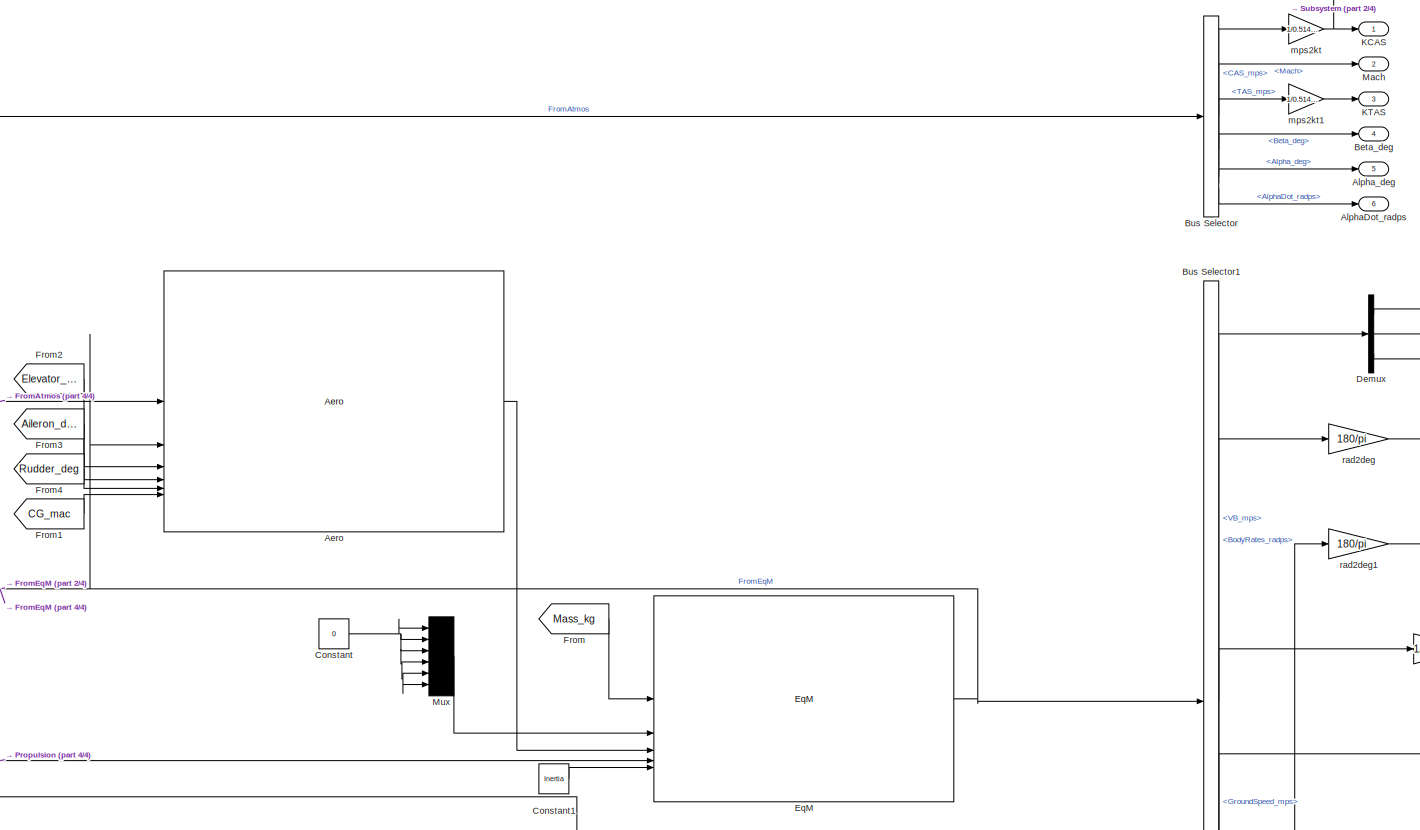
[diagram: root canvas - part 1/4, central region]
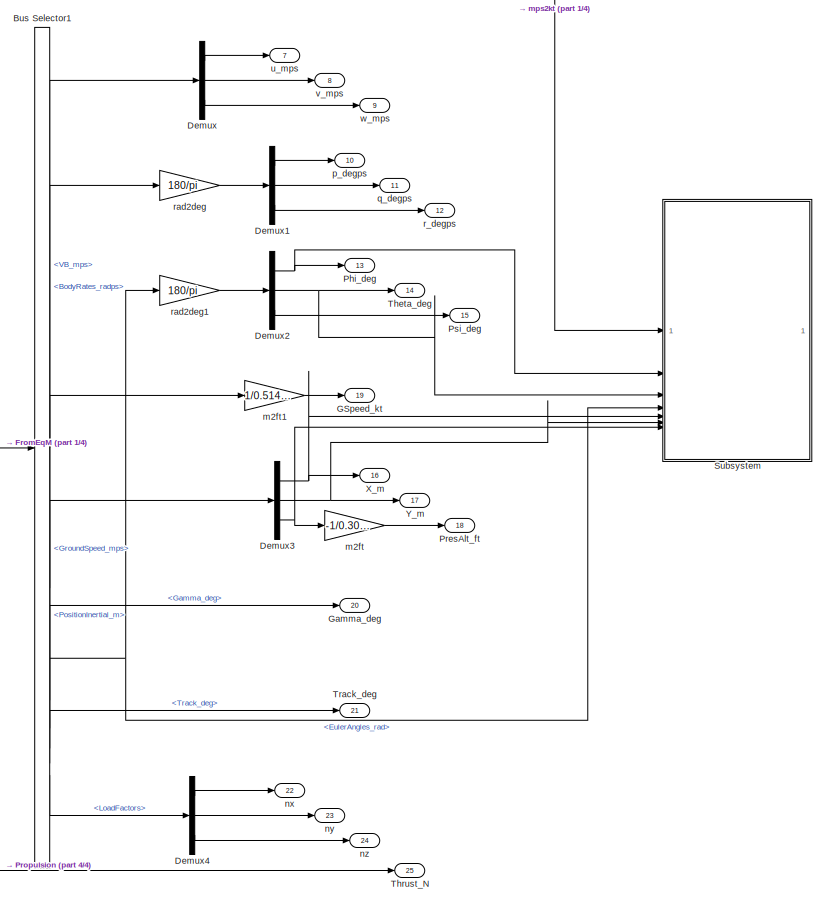
[diagram: root canvas - part 2/4, right side, full height]
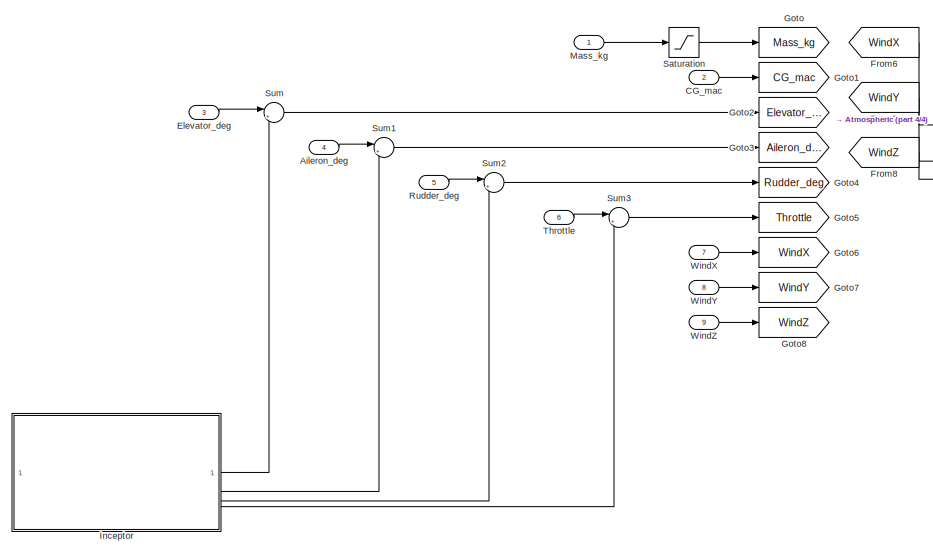
[diagram: root canvas - part 3/4, middle left region]
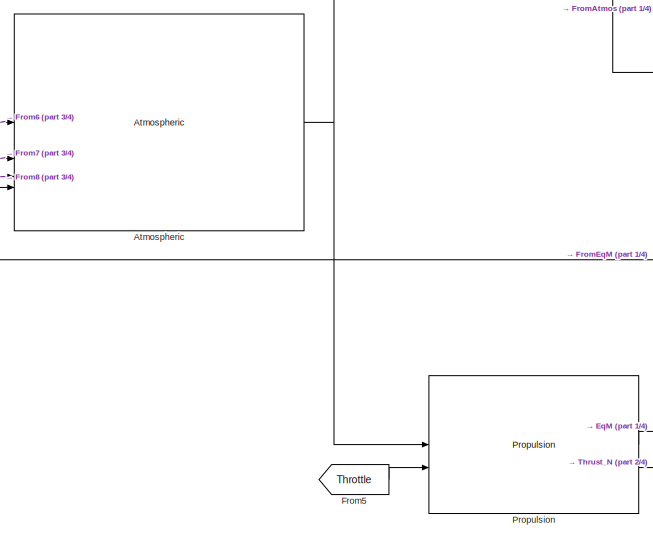
[diagram: root canvas - part 4/4, central region]
MODEL slx_308ef54bdd5a
KIND model
CONFIG AbsTol = auto
CONFIG EnableMultiTasking = on
CONFIG FixedStep = 0.01
CONFIG MaxStep = auto
CONFIG MinStep = auto
CONFIG RelTol = 1e-3
CONFIG SampleTimeConstraint = Unconstrained
CONFIG SolverName = ode4
CONFIG StartTime = 0.0
CONFIG StopTime = inf
BLOCK [Reference] Aero  REF=Aerodynamics/Aero
  SourceBlock = Aerodynamics/Aero
  SourceType = SubSystem
BLOCK [Inport] Aileron_deg
  Port = 4
BLOCK [Outport] AlphaDot_radps
  Port = 6
BLOCK [Outport] Alpha_deg 
  Port = 5
BLOCK [Reference] Atmospheric  REF=Atmospheric/Atmospheric
  SourceBlock = Atmospheric/Atmospheric
  SourceType = SubSystem
BLOCK [Outport] Beta_deg
  Port = 4
BLOCK [BusSelector] Bus Selector
  OutputSignals = CAS_mps,Mach,TAS_mps,Beta_deg,Alpha_deg,AlphaDot_radps
BLOCK [BusSelector] Bus Selector1
  OutputSignals = VB_mps,BodyRates_radps,EulerAngles_rad,GroundSpeed_mps,PositionInertial_m,Gamma_deg,Track_deg,LoadFactors
BLOCK [Inport] CG_mac
  Port = 2
BLOCK [Constant] Constant
  Value = 0
BLOCK [Constant] Constant1
  Value = Inertia
BLOCK [Demux] Demux
  Outputs = 3
BLOCK [Demux] Demux1
  Outputs = 3
BLOCK [Demux] Demux2
  Outputs = 3
BLOCK [Demux] Demux3
  Outputs = 3
BLOCK [Demux] Demux4
  Outputs = 3
BLOCK [Inport] Elevator_deg
  Port = 3
BLOCK [Reference] EqM  REF=EqM/EqM
  SourceBlock = EqM/EqM
  SourceType = SubSystem
BLOCK [From] From
  GotoTag = Mass_kg
BLOCK [From] From1
  GotoTag = CG_mac
BLOCK [From] From2
  GotoTag = Elevator_deg
BLOCK [From] From3
  GotoTag = Aileron_deg
BLOCK [From] From4
  GotoTag = Rudder_deg
BLOCK [From] From5
  GotoTag = Throttle
BLOCK [From] From6
  GotoTag = WindX
BLOCK [From] From7
  GotoTag = WindY
BLOCK [From] From8
  GotoTag = WindZ
BLOCK [Outport] GSpeed_kt
  Port = 19
BLOCK [Outport] Gamma_deg
  Port = 20
BLOCK [Goto] Goto
  GotoTag = Mass_kg
BLOCK [Goto] Goto1
  GotoTag = CG_mac
BLOCK [Goto] Goto2
  GotoTag = Elevator_deg
BLOCK [Goto] Goto3
  GotoTag = Aileron_deg
BLOCK [Goto] Goto4
  GotoTag = Rudder_deg
BLOCK [Goto] Goto5
  GotoTag = Throttle
BLOCK [Goto] Goto6
  GotoTag = WindX
BLOCK [Goto] Goto7
  GotoTag = WindY
BLOCK [Goto] Goto8
  GotoTag = WindZ
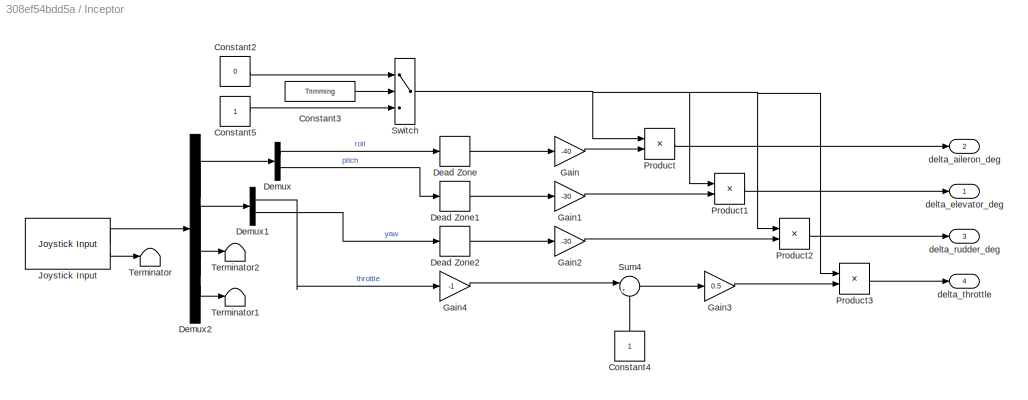
BLOCK [SubSystem] Inceptor
BLOCK [Constant] Inceptor/Constant2
  Value = 0
BLOCK [Constant] Inceptor/Constant3
  Value = Trimming
BLOCK [Constant] Inceptor/Constant4
  NameLocation = right
BLOCK [Constant] Inceptor/Constant5
BLOCK [DeadZone] Inceptor/Dead Zone
  LowerValue = -0.05
  UpperValue = 0.05
BLOCK [DeadZone] Inceptor/Dead Zone1
  LowerValue = -0.05
  UpperValue = 0.05
BLOCK [DeadZone] Inceptor/Dead Zone2
  LowerValue = -0.05
  UpperValue = 0.05
BLOCK [Demux] Inceptor/Demux
  Outputs = 2
BLOCK [Demux] Inceptor/Demux1
  Outputs = 2
BLOCK [Demux] Inceptor/Demux2
BLOCK [Gain] Inceptor/Gain
  Gain = -40
BLOCK [Gain] Inceptor/Gain1
  Gain = -30
BLOCK [Gain] Inceptor/Gain2
  Gain = -30
BLOCK [Gain] Inceptor/Gain3
  Gain = 0.5
BLOCK [Gain] Inceptor/Gain4
  Gain = -1
BLOCK [Reference] Inceptor/Joystick Input  REF=vrlib/Joystick Input
  SourceBlock = vrlib/Joystick Input
  SourceType = Joystick Input
BLOCK [Product] Inceptor/Product
BLOCK [Product] Inceptor/Product1
BLOCK [Product] Inceptor/Product2
BLOCK [Product] Inceptor/Product3
BLOCK [Sum] Inceptor/Sum4
  Inputs = |++
BLOCK [Switch] Inceptor/Switch
  Criteria = u2 > Threshold
  InputSameDT = off
  SaturateOnIntegerOverflow = off
  Threshold = 0.5
BLOCK [Terminator] Inceptor/Terminator
BLOCK [Terminator] Inceptor/Terminator1
BLOCK [Terminator] Inceptor/Terminator2
BLOCK [Outport] Inceptor/delta_aileron_deg
  Port = 2
BLOCK [Outport] Inceptor/delta_elevator_deg
BLOCK [Outport] Inceptor/delta_rudder_deg
  Port = 3
BLOCK [Outport] Inceptor/delta_throttle
  Port = 4
BLOCK [Outport] KCAS
BLOCK [Outport] KTAS
  Port = 3
BLOCK [Outport] Mach
  Port = 2
BLOCK [Inport] Mass_kg
BLOCK [Mux] Mux
  DisplayOption = bar
  Inputs = 6
BLOCK [Outport] Phi_deg
  Port = 13
BLOCK [Outport] PresAlt_ft
  Port = 18
BLOCK [Reference] Propulsion  REF=Propulsion/Propulsion
  SourceBlock = Propulsion/Propulsion
  SourceType = SubSystem
BLOCK [Outport] Psi_deg
  Port = 15
BLOCK [Inport] Rudder_deg
  Port = 5
BLOCK [Saturate] Saturation
  LowerLimit = 0.1
  UpperLimit = inf
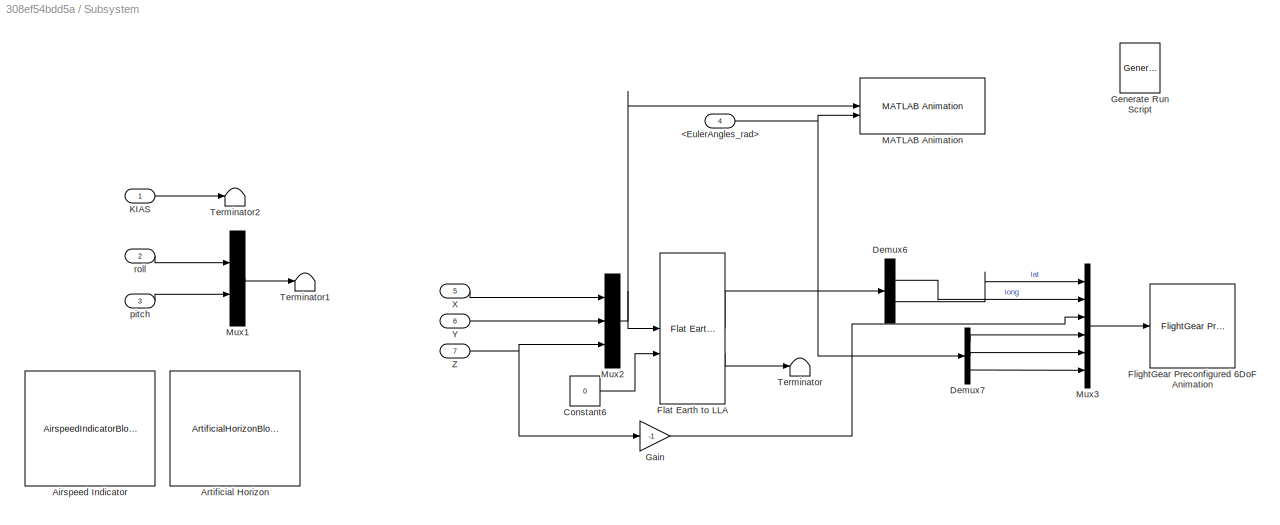
BLOCK [SubSystem] Subsystem
BLOCK [Inport] Subsystem/<EulerAngles_rad>
  Port = 4
BLOCK [AirspeedIndicatorBlock] Subsystem/Airspeed Indicator
  ScaleMin = 0
BLOCK [ArtificialHorizonBlock] Subsystem/Artificial Horizon
BLOCK [Constant] Subsystem/Constant6
  Value = 0
BLOCK [Demux] Subsystem/Demux6
  Outputs = 2
BLOCK [Demux] Subsystem/Demux7
  Outputs = 3
BLOCK [Reference] Subsystem/Flat Earth to LLA  REF=aerolibtransform2/Flat Earth to LLA
  SourceBlock = aerolibtransform2/Flat Earth to LLA
  SourceType = Flat Earth to LLA
BLOCK [Reference] Subsystem/FlightGear Preconfigured 6DoF Animation  REF=aerolibfltsims/FlightGear
Preconfigured
6DoF Animation
  SourceBlock = aerolibfltsims/FlightGear\nPreconfigured\n6DoF Animation
  SourceType = FlightGearQuick6DoFAnimation
BLOCK [Gain] Subsystem/Gain
  Gain = -1
BLOCK [Reference] Subsystem/Generate Run Script  REF=aerolibfltsims/Generate
Run Script
  SourceBlock = aerolibfltsims/Generate\nRun Script
  SourceType = Generate FlightGear Run Script
BLOCK [Inport] Subsystem/KIAS
BLOCK [Reference] Subsystem/MATLAB Animation  REF=aerolibanim/MATLAB
Animation
  SourceBlock = aerolibanim/MATLAB\nAnimation
  SourceType = AeroMATLABAnimation
  Tag = Matlab Animation 6 DOF
BLOCK [Mux] Subsystem/Mux1
  DisplayOption = bar
  Inputs = 2
BLOCK [Mux] Subsystem/Mux2
  DisplayOption = bar
  Inputs = 3
BLOCK [Mux] Subsystem/Mux3
  DisplayOption = bar
  Inputs = 6
BLOCK [Terminator] Subsystem/Terminator
BLOCK [Terminator] Subsystem/Terminator1
BLOCK [Terminator] Subsystem/Terminator2
BLOCK [Inport] Subsystem/X
  Port = 5
BLOCK [Inport] Subsystem/Y
  Port = 6
BLOCK [Inport] Subsystem/Z
  Port = 7
BLOCK [Inport] Subsystem/pitch
  Port = 3
BLOCK [Inport] Subsystem/roll
  Port = 2
BLOCK [Sum] Sum
  Inputs = |++
BLOCK [Sum] Sum1
  Inputs = |++
BLOCK [Sum] Sum2
  Inputs = |++
BLOCK [Sum] Sum3
  Inputs = |++
BLOCK [Outport] Theta_deg
  Port = 14
BLOCK [Inport] Throttle
  Port = 6
BLOCK [Outport] Thrust_N
  Port = 25
BLOCK [Outport] Track_deg
  Port = 21
BLOCK [Inport] WindX
  Port = 7
BLOCK [Inport] WindY
  Port = 8
BLOCK [Inport] WindZ
  Port = 9
BLOCK [Outport] X_m
  Port = 16
BLOCK [Outport] Y_m
  Port = 17
BLOCK [Gain] m2ft
  Gain = -1/0.3048
BLOCK [Gain] m2ft1
  Gain = 1/0.5144444
BLOCK [Gain] mps2kt
  Gain = 1/0.51444444
BLOCK [Gain] mps2kt1
  Gain = 1/0.51444444
BLOCK [Outport] nx
  Port = 22
BLOCK [Outport] ny
  Port = 23
BLOCK [Outport] nz
  Port = 24
BLOCK [Outport] p_degps
  Port = 10
BLOCK [Outport] q_degps
  Port = 11
BLOCK [Outport] r_degps
  Port = 12
BLOCK [Gain] rad2deg
  Gain = 180/pi
BLOCK [Gain] rad2deg1
  Gain = 180/pi
BLOCK [Outport] u_mps
  Port = 7
BLOCK [Outport] v_mps
  Port = 8
BLOCK [Outport] w_mps
  Port = 9
LINE Aero:1 -> EqM:3
LINE Aileron_deg:1 -> Sum1:1
NET Atmospheric:1 -> Aero:1, Bus Selector:1, Propulsion:1
LINE Bus Selector1:1 -> Demux:1
LINE Bus Selector1:2 -> rad2deg:1
NET Bus Selector1:3 -> Subsystem:4, rad2deg1:1
LINE Bus Selector1:4 -> m2ft1:1
LINE Bus Selector1:5 -> Demux3:1
LINE Bus Selector1:6 -> Gamma_deg:1
LINE Bus Selector1:7 -> Track_deg:1
LINE Bus Selector1:8 -> Demux4:1
LINE Bus Selector:1 -> mps2kt:1
LINE Bus Selector:2 -> Mach:1
LINE Bus Selector:3 -> mps2kt1:1
LINE Bus Selector:4 -> Beta_deg:1
LINE Bus Selector:5 -> Alpha_deg :1
LINE Bus Selector:6 -> AlphaDot_radps:1
LINE CG_mac:1 -> Goto1:1
LINE Constant1:1 -> EqM:5
NET Constant:1 -> Mux:1, Mux:2, Mux:3, Mux:4, Mux:5, Mux:6
LINE Demux1:1 -> p_degps:1
LINE Demux1:2 -> q_degps:1
LINE Demux1:3 -> r_degps:1
NET Demux2:1 -> Phi_deg:1, Subsystem:2
NET Demux2:2 -> Subsystem:3, Theta_deg:1
LINE Demux2:3 -> Psi_deg:1
NET Demux3:1 -> Subsystem:5, X_m:1
NET Demux3:2 -> Subsystem:6, Y_m:1
NET Demux3:3 -> Subsystem:7, m2ft:1
LINE Demux4:1 -> nx:1
LINE Demux4:2 -> ny:1
LINE Demux4:3 -> nz:1
LINE Demux:1 -> u_mps:1
LINE Demux:2 -> v_mps:1
LINE Demux:3 -> w_mps:1
LINE Elevator_deg:1 -> Sum:1
NET EqM:1 -> Aero:2, Atmospheric:4, Bus Selector1:1
LINE From1:1 -> Aero:6
LINE From2:1 -> Aero:3
LINE From3:1 -> Aero:4
LINE From4:1 -> Aero:5
LINE From5:1 -> Propulsion:2
LINE From6:1 -> Atmospheric:1
LINE From7:1 -> Atmospheric:2
LINE From8:1 -> Atmospheric:3
LINE From:1 -> EqM:1
LINE Inceptor/Constant2:1 -> Inceptor/Switch:1
LINE Inceptor/Constant3:1 -> Inceptor/Switch:2
LINE Inceptor/Constant4:1 -> Inceptor/Sum4:2
LINE Inceptor/Constant5:1 -> Inceptor/Switch:3
LINE Inceptor/Dead Zone1:1 -> Inceptor/Gain1:1
LINE Inceptor/Dead Zone2:1 -> Inceptor/Gain2:1
LINE Inceptor/Dead Zone:1 -> Inceptor/Gain:1
LINE Inceptor/Demux1:1 -> Inceptor/Gain4:1
LINE Inceptor/Demux1:2 -> Inceptor/Dead Zone2:1
LINE Inceptor/Demux2:1 -> Inceptor/Demux:1
LINE Inceptor/Demux2:2 -> Inceptor/Demux1:1
LINE Inceptor/Demux2:3 -> Inceptor/Terminator2:1
LINE Inceptor/Demux2:4 -> Inceptor/Terminator1:1
LINE Inceptor/Demux:1 -> Inceptor/Dead Zone:1
LINE Inceptor/Demux:2 -> Inceptor/Dead Zone1:1
LINE Inceptor/Gain1:1 -> Inceptor/Product1:2
LINE Inceptor/Gain2:1 -> Inceptor/Product2:2
LINE Inceptor/Gain3:1 -> Inceptor/Product3:2
LINE Inceptor/Gain4:1 -> Inceptor/Sum4:1
LINE Inceptor/Gain:1 -> Inceptor/Product:2
LINE Inceptor/Joystick Input:1 -> Inceptor/Demux2:1
LINE Inceptor/Joystick Input:2 -> Inceptor/Terminator:1
LINE Inceptor/Product1:1 -> Inceptor/delta_elevator_deg:1
LINE Inceptor/Product2:1 -> Inceptor/delta_rudder_deg:1
LINE Inceptor/Product3:1 -> Inceptor/delta_throttle:1
LINE Inceptor/Product:1 -> Inceptor/delta_aileron_deg:1
LINE Inceptor/Sum4:1 -> Inceptor/Gain3:1
NET Inceptor/Switch:1 -> Inceptor/Product1:1, Inceptor/Product2:1, Inceptor/Product3:1, Inceptor/Product:1
LINE Inceptor:1 -> Sum:2
LINE Inceptor:2 -> Sum1:2
LINE Inceptor:3 -> Sum2:2
LINE Inceptor:4 -> Sum3:2
LINE Mass_kg:1 -> Saturation:1
LINE Mux:1 -> EqM:2
LINE Propulsion:1 -> EqM:4
LINE Propulsion:2 -> Thrust_N:1
LINE Rudder_deg:1 -> Sum2:1
LINE Saturation:1 -> Goto:1
NET Subsystem/<EulerAngles_rad>:1 -> Subsystem/Demux7:1, Subsystem/MATLAB Animation:2
LINE Subsystem/Constant6:1 -> Subsystem/Flat Earth to LLA:2
LINE Subsystem/Demux6:1 -> Subsystem/Mux3:2
LINE Subsystem/Demux6:2 -> Subsystem/Mux3:1
LINE Subsystem/Demux7:1 -> Subsystem/Mux3:4
LINE Subsystem/Demux7:2 -> Subsystem/Mux3:5
LINE Subsystem/Demux7:3 -> Subsystem/Mux3:6
LINE Subsystem/Flat Earth to LLA:1 -> Subsystem/Demux6:1
LINE Subsystem/Flat Earth to LLA:2 -> Subsystem/Terminator:1
LINE Subsystem/Gain:1 -> Subsystem/Mux3:3
LINE Subsystem/KIAS:1 -> Subsystem/Terminator2:1
LINE Subsystem/Mux1:1 -> Subsystem/Terminator1:1
NET Subsystem/Mux2:1 -> Subsystem/Flat Earth to LLA:1, Subsystem/MATLAB Animation:1
LINE Subsystem/Mux3:1 -> Subsystem/FlightGear Preconfigured 6DoF Animation:1
LINE Subsystem/X:1 -> Subsystem/Mux2:1
LINE Subsystem/Y:1 -> Subsystem/Mux2:2
NET Subsystem/Z:1 -> Subsystem/Gain:1, Subsystem/Mux2:3
LINE Subsystem/pitch:1 -> Subsystem/Mux1:2
LINE Subsystem/roll:1 -> Subsystem/Mux1:1
LINE Sum1:1 -> Goto3:1
LINE Sum2:1 -> Goto4:1
LINE Sum3:1 -> Goto5:1
LINE Sum:1 -> Goto2:1
LINE Throttle:1 -> Sum3:1
LINE WindX:1 -> Goto6:1
LINE WindY:1 -> Goto7:1
LINE WindZ:1 -> Goto8:1
LINE m2ft1:1 -> GSpeed_kt:1
LINE m2ft:1 -> PresAlt_ft:1
LINE mps2kt1:1 -> KTAS:1
NET mps2kt:1 -> KCAS:1, Subsystem:1
LINE rad2deg1:1 -> Demux2:1
LINE rad2deg:1 -> Demux1:1
note: NET lines group one-source signal fan-out (src -> all destinations, sorted); 1:1 wires keep LINE
